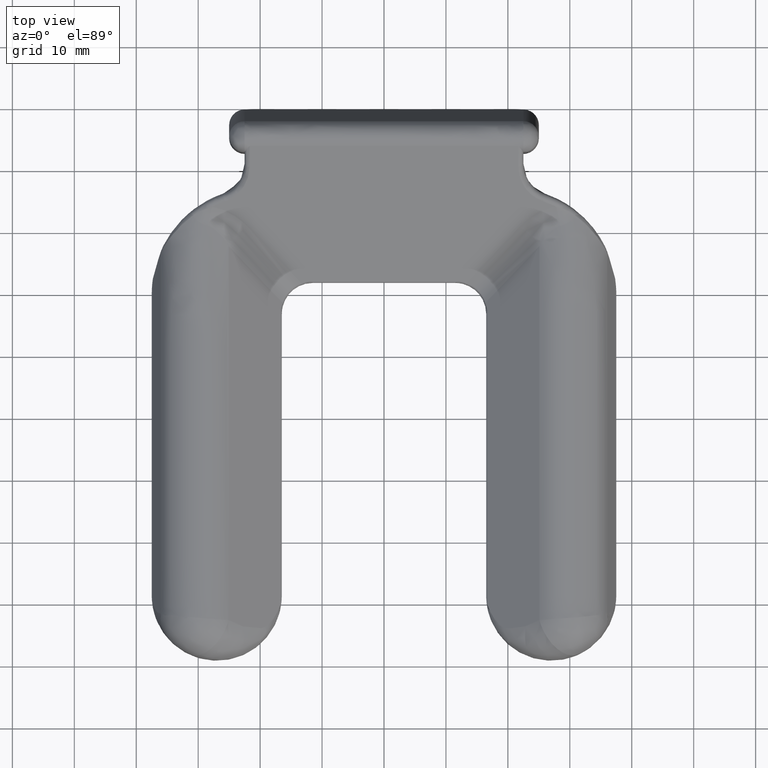
[diagram: clean part render]
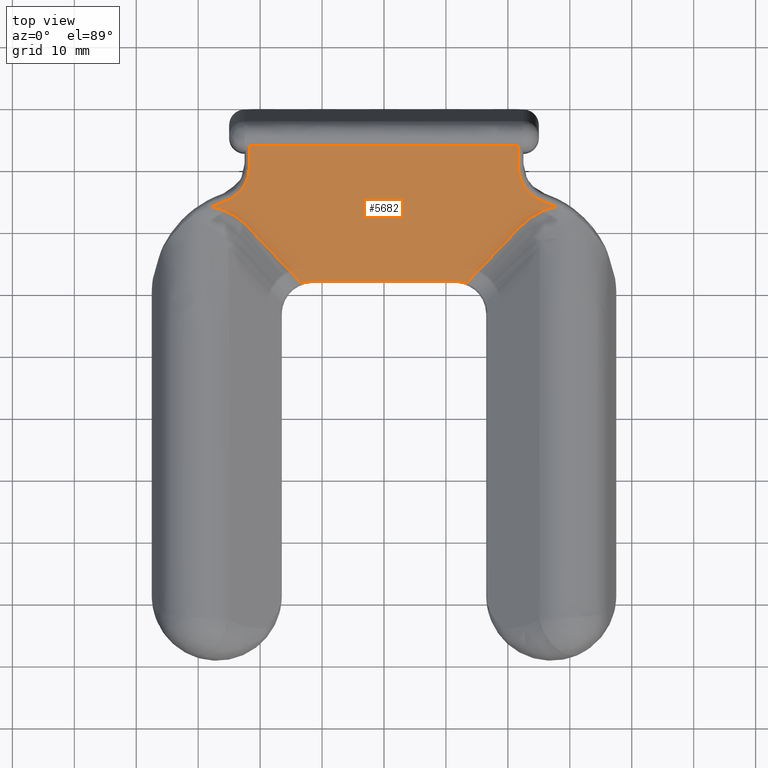
[diagram: same view with one face highlighted and labeled with its STEP entity id]
A machine part, top view. The second image highlights one B-rep face of the part: STEP entity #5682.
In plain terms, the highlighted face is a freeform B-spline surface patch.
Its self-contained STEP definition (entity closure, byte-faithful):
#3096=CARTESIAN_POINT('',(21.935909569018499,-19.159173031127700,9.384171584374069));
#3097=VERTEX_POINT('',#3096);
#3128=CARTESIAN_POINT('',(27.756710043085398,-15.889660556571149,11.930074272855860));
#3129=VERTEX_POINT('',#3128);
#3143=CARTESIAN_POINT('',(21.935909569018499,-19.159173031127640,9.384171584374018));
#3144=CARTESIAN_POINT('',(24.496871752394274,-16.498405101928025,11.456057309567482));
#3145=CARTESIAN_POINT('',(27.756710043085398,-15.889660556571091,11.930074272855910));
#3153=(BOUNDED_CURVE()B_SPLINE_CURVE(2,(#3143,#3144,#3145),.UNSPECIFIED.,.F.,.U.)CURVE()GEOMETRIC_REPRESENTATION_ITEM()QUASI_UNIFORM_CURVE()RATIONAL_B_SPLINE_CURVE((1.0,0.964326064811125,1.0))REPRESENTATION_ITEM(''));
#3154=EDGE_CURVE('',#3097,#3129,#3153,.T.);
#3173=CARTESIAN_POINT('',(13.315547046603781,-28.115488078107401,2.410071704211025));
#3174=VERTEX_POINT('',#3173);
#3175=CARTESIAN_POINT('',(13.315547046603781,-28.115488078107401,2.410071704211025));
#3176=CARTESIAN_POINT('',(21.935909569018499,-19.159173031127700,9.384171584374069));
#3177=QUASI_UNIFORM_CURVE('',1,(#3175,#3176),.UNSPECIFIED.,.F.,.U.);
#3178=EDGE_CURVE('',#3174,#3097,#3177,.T.);
#3245=CARTESIAN_POINT('',(-21.935909569018602,-19.159173031127551,9.384171584374180));
#3246=VERTEX_POINT('',#3245);
#3260=CARTESIAN_POINT('',(-27.756710043085349,-15.889660556571149,11.930074272855860));
#3261=VERTEX_POINT('',#3260);
#3262=CARTESIAN_POINT('',(-27.756710043085349,-15.889660556571149,11.930074272855860));
#3263=CARTESIAN_POINT('',(-24.496871752394210,-16.498405101928153,11.456057309567390));
#3264=CARTESIAN_POINT('',(-21.935909569018602,-19.159173031127530,9.384171584374101));
#3272=(BOUNDED_CURVE()B_SPLINE_CURVE(2,(#3262,#3263,#3264),.UNSPECIFIED.,.F.,.U.)CURVE()GEOMETRIC_REPRESENTATION_ITEM()QUASI_UNIFORM_CURVE()RATIONAL_B_SPLINE_CURVE((1.0,0.964326064811121,1.0))REPRESENTATION_ITEM(''));
#3273=EDGE_CURVE('',#3261,#3246,#3272,.T.);
#3327=CARTESIAN_POINT('',(-13.315547046603740,-28.115488078107401,2.410071704211020));
#3328=VERTEX_POINT('',#3327);
#3356=CARTESIAN_POINT('',(-21.935909569018602,-19.159173031127551,9.384171584374180));
#3357=CARTESIAN_POINT('',(-13.315547046603740,-28.115488078107401,2.410071704211020));
#3358=QUASI_UNIFORM_CURVE('',1,(#3356,#3357),.UNSPECIFIED.,.F.,.U.);
#3359=EDGE_CURVE('',#3246,#3328,#3358,.T.);
#5557=CARTESIAN_POINT('',(30.529605268793851,-29.209993648750029,1.557802536699891));
#5558=CARTESIAN_POINT('',(30.529605268793851,-5.108957633203978,20.324787787459581));
#5559=CARTESIAN_POINT('',(-30.529606757779760,-29.209993648750029,1.557802536699891));
#5560=CARTESIAN_POINT('',(-30.529606757779760,-5.108957633203978,20.324787787459581));
#5561=B_SPLINE_SURFACE_WITH_KNOTS('',1,1,((#5557,#5559),(#5558,#5560)),.UNSPECIFIED.,.F.,.F.,.U.,(2,2),(2,2),(0.0,30.546025476727401),(0.0,61.059212026573618),.UNSPECIFIED.);
#5562=ORIENTED_EDGE('',*,*,#3359,.T.);
#5563=CARTESIAN_POINT('',(-11.500000000000000,-27.807191933448951,2.650135624946175));
#5564=VERTEX_POINT('',#5563);
#5565=CARTESIAN_POINT('',(-13.315547046603740,-28.115488078107390,2.410071704211036));
#5566=CARTESIAN_POINT('',(-12.433949246202872,-27.807191933448948,2.650135624946184));
#5567=CARTESIAN_POINT('',(-11.500000000000000,-27.807191933448951,2.650135624946184));
#5575=(BOUNDED_CURVE()B_SPLINE_CURVE(2,(#5565,#5566,#5567),.UNSPECIFIED.,.F.,.U.)CURVE()GEOMETRIC_REPRESENTATION_ITEM()QUASI_UNIFORM_CURVE()RATIONAL_B_SPLINE_CURVE((1.0,0.985886949785986,1.0))REPRESENTATION_ITEM(''));
#5576=EDGE_CURVE('',#3328,#5564,#5575,.T.);
#5577=ORIENTED_EDGE('',*,*,#5576,.T.);
#5578=CARTESIAN_POINT('',(11.500000000000000,-27.807191933448951,2.650135624946180));
#5579=VERTEX_POINT('',#5578);
#5580=CARTESIAN_POINT('',(-11.500000000000000,-27.807191933448951,2.650135624946175));
#5581=CARTESIAN_POINT('',(11.500000000000000,-27.807191933448951,2.650135624946180));
#5582=QUASI_UNIFORM_CURVE('',1,(#5580,#5581),.UNSPECIFIED.,.F.,.U.);
#5583=EDGE_CURVE('',#5564,#5579,#5582,.T.);
#5584=ORIENTED_EDGE('',*,*,#5583,.T.);
#5585=CARTESIAN_POINT('',(11.500000000000000,-27.807191933448951,2.650135624946180));
#5586=CARTESIAN_POINT('',(12.433949302483761,-27.807191953130456,2.650135609620595));
#5587=CARTESIAN_POINT('',(13.315547046603781,-28.115488078107401,2.410071704211026));
#5595=(BOUNDED_CURVE()B_SPLINE_CURVE(2,(#5585,#5586,#5587),.UNSPECIFIED.,.F.,.U.)CURVE()GEOMETRIC_REPRESENTATION_ITEM()QUASI_UNIFORM_CURVE()RATIONAL_B_SPLINE_CURVE((1.0,0.985886951549971,1.0))REPRESENTATION_ITEM(''));
#5596=EDGE_CURVE('',#5579,#3174,#5595,.T.);
#5597=ORIENTED_EDGE('',*,*,#5596,.T.);
#5598=ORIENTED_EDGE('',*,*,#3178,.T.);
#5599=ORIENTED_EDGE('',*,*,#3154,.T.);
#5600=CARTESIAN_POINT('',(25.654545409162800,-15.015369394867051,12.610866970978400));
#5601=VERTEX_POINT('',#5600);
#5602=CARTESIAN_POINT('',(27.756710043085398,-15.889660556571149,11.930074272855860));
#5603=CARTESIAN_POINT('',(26.736421734418911,-15.378473228100297,12.328125420848020));
#5604=CARTESIAN_POINT('',(25.654545409162800,-15.015369394867051,12.610866970978400));
#5612=(BOUNDED_CURVE()B_SPLINE_CURVE(2,(#5602,#5603,#5604),.UNSPECIFIED.,.F.,.U.)CURVE()GEOMETRIC_REPRESENTATION_ITEM()QUASI_UNIFORM_CURVE()RATIONAL_B_SPLINE_CURVE((1.0,0.997528059732201,1.0))REPRESENTATION_ITEM(''));
#5613=EDGE_CURVE('',#3129,#5601,#5612,.T.);
#5614=ORIENTED_EDGE('',*,*,#5613,.T.);
#5615=CARTESIAN_POINT('',(21.699999999999999,-9.516797093518489,16.892493089170252));
#5616=VERTEX_POINT('',#5615);
#5617=CARTESIAN_POINT('',(25.654545409162751,-15.015369394867060,12.610866970978410));
#5618=CARTESIAN_POINT('',(21.699999999999992,-13.688127780125736,13.644362949822554));
#5619=CARTESIAN_POINT('',(21.699999999999999,-9.516797093518491,16.892493089170252));
#5627=(BOUNDED_CURVE()B_SPLINE_CURVE(2,(#5617,#5618,#5619),.UNSPECIFIED.,.F.,.U.)CURVE()GEOMETRIC_REPRESENTATION_ITEM()QUASI_UNIFORM_CURVE()RATIONAL_B_SPLINE_CURVE((1.0,0.811844143295503,1.0))REPRESENTATION_ITEM(''));
#5628=EDGE_CURVE('',#5601,#5616,#5627,.T.);
#5629=ORIENTED_EDGE('',*,*,#5628,.T.);
#5630=CARTESIAN_POINT('',(21.699999999999999,-6.203463791572919,19.472518162298002));
#5631=VERTEX_POINT('',#5630);
#5632=CARTESIAN_POINT('',(21.699999999999999,-9.516797093518489,16.892493089170252));
#5633=CARTESIAN_POINT('',(21.699999999999999,-6.203463791572919,19.472518162298002));
#5634=QUASI_UNIFORM_CURVE('',1,(#5632,#5633),.UNSPECIFIED.,.F.,.U.);
#5635=EDGE_CURVE('',#5616,#5631,#5634,.T.);
#5636=ORIENTED_EDGE('',*,*,#5635,.T.);
#5637=CARTESIAN_POINT('',(-21.699999999999999,-6.203463791572919,19.472518162298002));
#5638=VERTEX_POINT('',#5637);
#5639=CARTESIAN_POINT('',(21.699999999999999,-6.203463791572919,19.472518162298002));
#5640=CARTESIAN_POINT('',(-21.699999999999999,-6.203463791572919,19.472518162298002));
#5641=QUASI_UNIFORM_CURVE('',1,(#5639,#5640),.UNSPECIFIED.,.F.,.U.);
#5642=EDGE_CURVE('',#5631,#5638,#5641,.T.);
#5643=ORIENTED_EDGE('',*,*,#5642,.T.);
#5644=CARTESIAN_POINT('',(-21.699999999999999,-9.516797093518560,16.892493089170198));
#5645=VERTEX_POINT('',#5644);
#5646=CARTESIAN_POINT('',(-21.699999999999999,-6.203463791572919,19.472518162298002));
#5647=CARTESIAN_POINT('',(-21.699999999999999,-9.516797093518560,16.892493089170198));
#5648=QUASI_UNIFORM_CURVE('',1,(#5646,#5647),.UNSPECIFIED.,.F.,.U.);
#5649=EDGE_CURVE('',#5638,#5645,#5648,.T.);
#5650=ORIENTED_EDGE('',*,*,#5649,.T.);
#5651=CARTESIAN_POINT('',(-25.654545409162751,-15.015369394867051,12.610866970978400));
#5652=VERTEX_POINT('',#5651);
#5653=CARTESIAN_POINT('',(-21.699999999999999,-9.516797093518560,16.892493089170198));
#5654=CARTESIAN_POINT('',(-21.700000000000003,-13.688127780125736,13.644362949822554));
#5655=CARTESIAN_POINT('',(-25.654545409162751,-15.015369394867051,12.610866970978410));
#5663=(BOUNDED_CURVE()B_SPLINE_CURVE(2,(#5653,#5654,#5655),.UNSPECIFIED.,.F.,.U.)CURVE()GEOMETRIC_REPRESENTATION_ITEM()QUASI_UNIFORM_CURVE()RATIONAL_B_SPLINE_CURVE((1.0,0.811844143295489,1.0))REPRESENTATION_ITEM(''));
#5664=EDGE_CURVE('',#5645,#5652,#5663,.T.);
#5665=ORIENTED_EDGE('',*,*,#5664,.T.);
#5666=CARTESIAN_POINT('',(-25.654545409162751,-15.015369394867051,12.610866970978400));
#5667=CARTESIAN_POINT('',(-26.736421794986729,-15.378472793318137,12.328125759404019));
#5668=CARTESIAN_POINT('',(-27.756710043085349,-15.889660556571140,11.930074272855901));
#5676=(BOUNDED_CURVE()B_SPLINE_CURVE(2,(#5666,#5667,#5668),.UNSPECIFIED.,.F.,.U.)CURVE()GEOMETRIC_REPRESENTATION_ITEM()QUASI_UNIFORM_CURVE()RATIONAL_B_SPLINE_CURVE((1.0,0.997528055542925,1.0))REPRESENTATION_ITEM(''));
#5677=EDGE_CURVE('',#5652,#3261,#5676,.T.);
#5678=ORIENTED_EDGE('',*,*,#5677,.T.);
#5679=ORIENTED_EDGE('',*,*,#3273,.T.);
#5680=EDGE_LOOP('',(#5562,#5577,#5584,#5597,#5598,#5599,#5614,#5629,#5636,#5643,#5650,#5665,#5678,#5679));
#5681=FACE_OUTER_BOUND('',#5680,.T.);
#5682=ADVANCED_FACE('',(#5681),#5561,.T.);